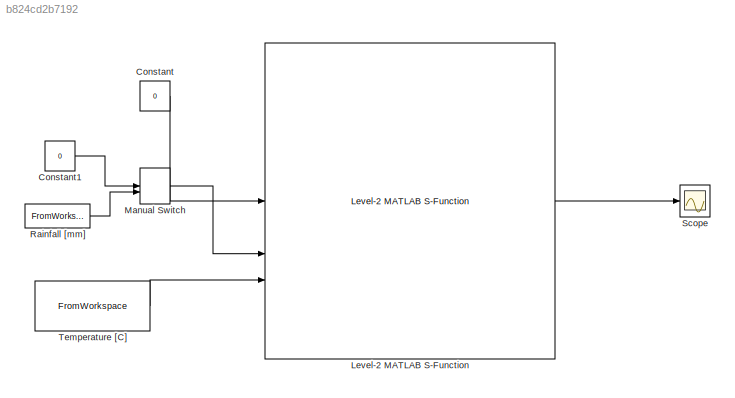
MODEL slx_b824cd2b7192
KIND model
CONFIG AbsTol = auto
CONFIG EnableMultiTasking = off
CONFIG FixedStep = auto
CONFIG MaxStep = auto
CONFIG MinStep = auto
CONFIG RelTol = 1e-3
CONFIG SampleTimeConstraint = Unconstrained
CONFIG SolverName = VariableStepAuto
CONFIG StartTime = 0.0
CONFIG StopTime = 365*24
BLOCK [Constant] Constant
  Value = 0
BLOCK [Constant] Constant1
  Value = 0
BLOCK [Reference] Level-2 MATLAB S-Function  REF=Demand_lib/Level-2 MATLAB
S-Function
  SourceBlock = Demand_lib/Level-2 MATLAB\nS-Function
BLOCK [ManualSwitch] Manual Switch
  CurrentSetting = 0
BLOCK [FromWorkspace] Rainfall [mm]
  OutDataTypeStr = double
  SampleTime = 1
  VariableName = rain_data
BLOCK [Scope] Scope
  Floating = off
  NumInputPorts = 1
  ScopeSpecificationString = Simulink.scopes.TimeScopeBlockCfg('CurrentConfiguration', extmgr.ConfigurationSet(extmgr.Configuration('Core','General UI',true),extmgr.Configuration('Core','Source UI',true),extmgr.Configuration('Sources','WiredSimulink',true),extmgr.Configuration('Visuals','Time Domain',true,'SerializedDisplays',{struct('MinYLimReal','-7.61623','MaxYLimReal','68.54611','YLabelReal','','MinYLimMag','0.00000','Max...<+1474ch>
BLOCK [FromWorkspace] Temperature [C]
  OutDataTypeStr = double
  SampleTime = 1
  VariableName = temperature_data
LINE Constant1:1 -> Manual Switch:1
LINE Constant:1 -> Level-2 MATLAB S-Function:1
LINE Level-2 MATLAB S-Function:1 -> Scope:1
LINE Manual Switch:1 -> Level-2 MATLAB S-Function:2
LINE Rainfall [mm]:1 -> Manual Switch:2
LINE Temperature [C]:1 -> Level-2 MATLAB S-Function:3
